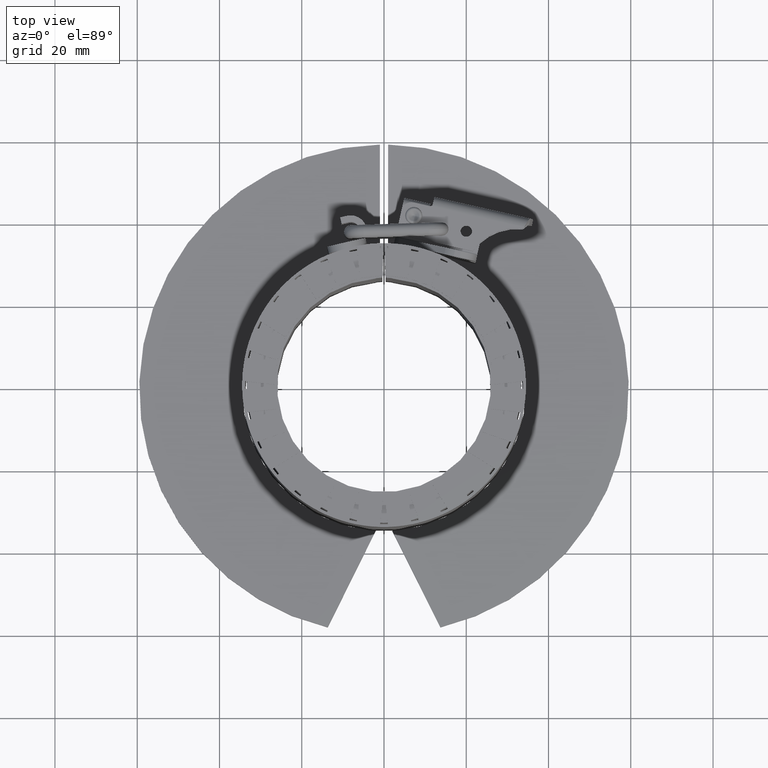
[diagram: clean part render]
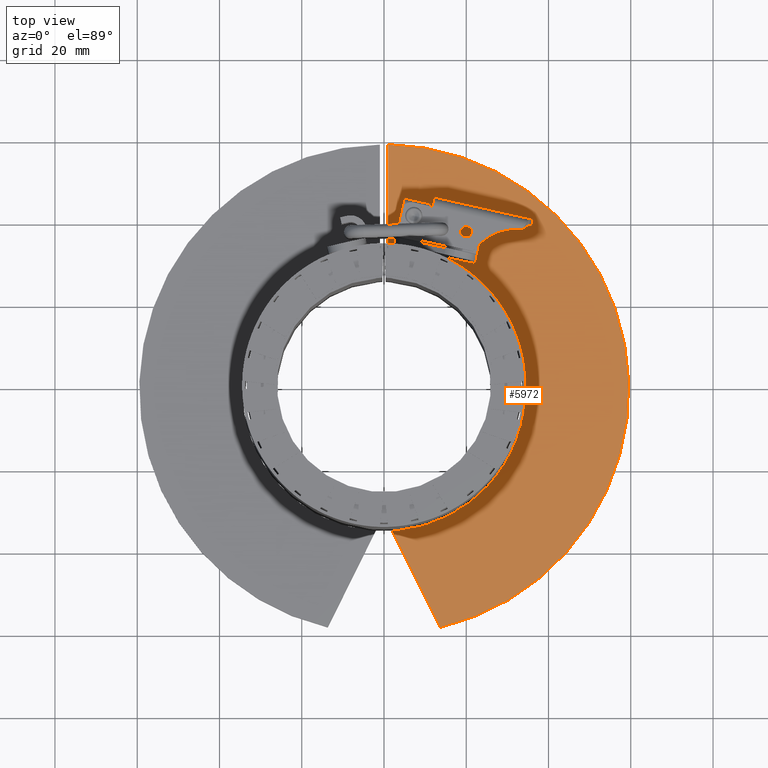
[diagram: same view with one face highlighted and labeled with its STEP entity id]
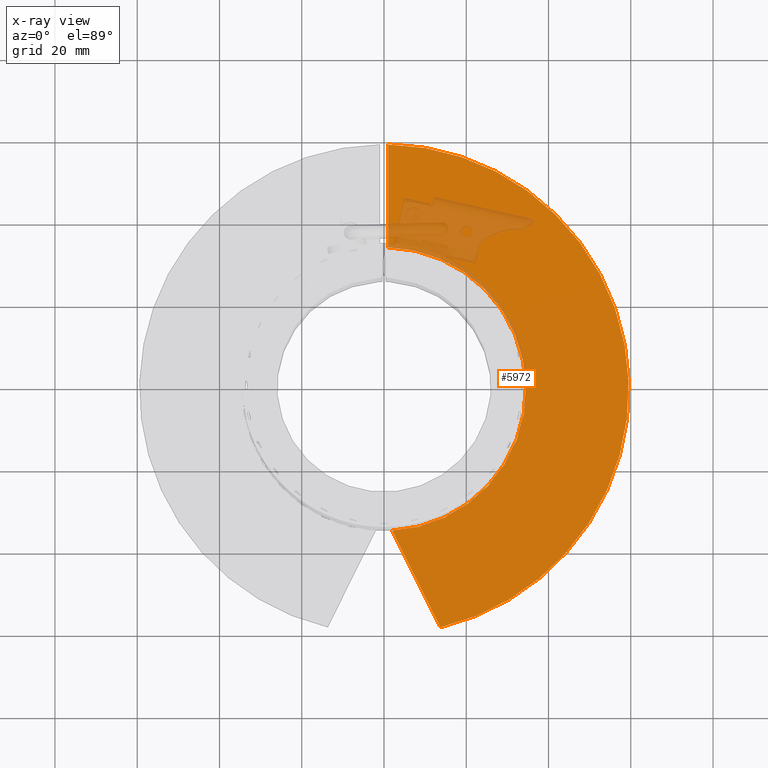
[diagram: x-ray of the same camera — body ghosted, the highlighted face saturated]
A machine part, top view. The second image highlights one B-rep face of the part: STEP entity #5972.
The next image is the same camera in x-ray: the body ghosted, the highlighted face saturated — about 10% of this face is hidden behind the body in this view.
In plain terms, the highlighted planar face has unit normal (0, 0, 1).
Its self-contained STEP definition (entity closure, byte-faithful):
#5838=CARTESIAN_POINT('',(13.696764678795221,-57.902060734776164,-27.04999999999999));
#5839=VERTEX_POINT('',#5838);
#5840=CARTESIAN_POINT('',(2.000000000000022,-34.44198019858905,-27.04999999999999));
#5841=VERTEX_POINT('',#5840);
#5842=CARTESIAN_POINT('',(13.696764678795221,-57.902060734776164,-27.04999999999999));
#5843=DIRECTION('',(-0.446197813109809,0.894934361602025,0.0));
#5844=VECTOR('',#5843,26.214303017923196);
#5845=LINE('',#5842,#5844);
#5846=EDGE_CURVE('',#5839,#5841,#5845,.T.);
#5878=CARTESIAN_POINT('',(0.999999999999978,34.485504201040762,-27.04999999999999));
#5879=VERTEX_POINT('',#5878);
#5880=CARTESIAN_POINT('',(-2.114194E-017,7.771043E-033,-27.04999999999999));
#5881=DIRECTION('',(-2.368348E-020,4.078529E-019,1.0));
#5882=DIRECTION('',(0.057971014492754,-0.99831826662577,4.085399E-019));
#5883=AXIS2_PLACEMENT_3D('',#5880,#5881,#5882);
#5884=CIRCLE('',#5883,34.500000000000007);
#5885=EDGE_CURVE('',#5841,#5879,#5884,.T.);
#5911=CARTESIAN_POINT('',(0.999999999999962,59.491596045155823,-27.04999999999999));
#5912=VERTEX_POINT('',#5911);
#5913=CARTESIAN_POINT('',(0.999999999999978,34.485504201040762,-27.04999999999999));
#5914=DIRECTION('',(0.0,1.0,0.0));
#5915=VECTOR('',#5914,25.006091844115055);
#5916=LINE('',#5913,#5915);
#5917=EDGE_CURVE('',#5879,#5912,#5916,.T.);
#5942=CARTESIAN_POINT('',(-2.114194E-017,7.771043E-033,-27.04999999999999));
#5943=DIRECTION('',(3.734442E-019,-1.578708E-018,-1.0));
#5944=DIRECTION('',(-0.230197725694037,0.973143877895398,-1.622276E-018));
#5945=AXIS2_PLACEMENT_3D('',#5942,#5943,#5944);
#5946=CIRCLE('',#5945,59.499999999999993);
#5947=EDGE_CURVE('',#5912,#5839,#5946,.T.);
#5961=CARTESIAN_POINT('',(26.803917018630308,2.100282554278623,-27.04999999999999));
#5962=DIRECTION('',(0.0,0.0,1.0));
#5963=DIRECTION('',(1.0,0.0,0.0));
#5964=AXIS2_PLACEMENT_3D('',#5961,#5962,#5963);
#5965=PLANE('',#5964);
#5966=ORIENTED_EDGE('',*,*,#5846,.F.);
#5967=ORIENTED_EDGE('',*,*,#5947,.F.);
#5968=ORIENTED_EDGE('',*,*,#5917,.F.);
#5969=ORIENTED_EDGE('',*,*,#5885,.F.);
#5970=EDGE_LOOP('',(#5966,#5967,#5968,#5969));
#5971=FACE_OUTER_BOUND('',#5970,.T.);
#5972=ADVANCED_FACE('',(#5971),#5965,.T.);